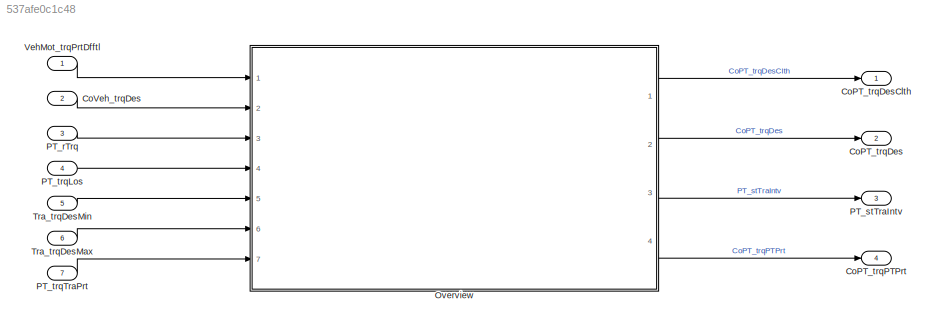
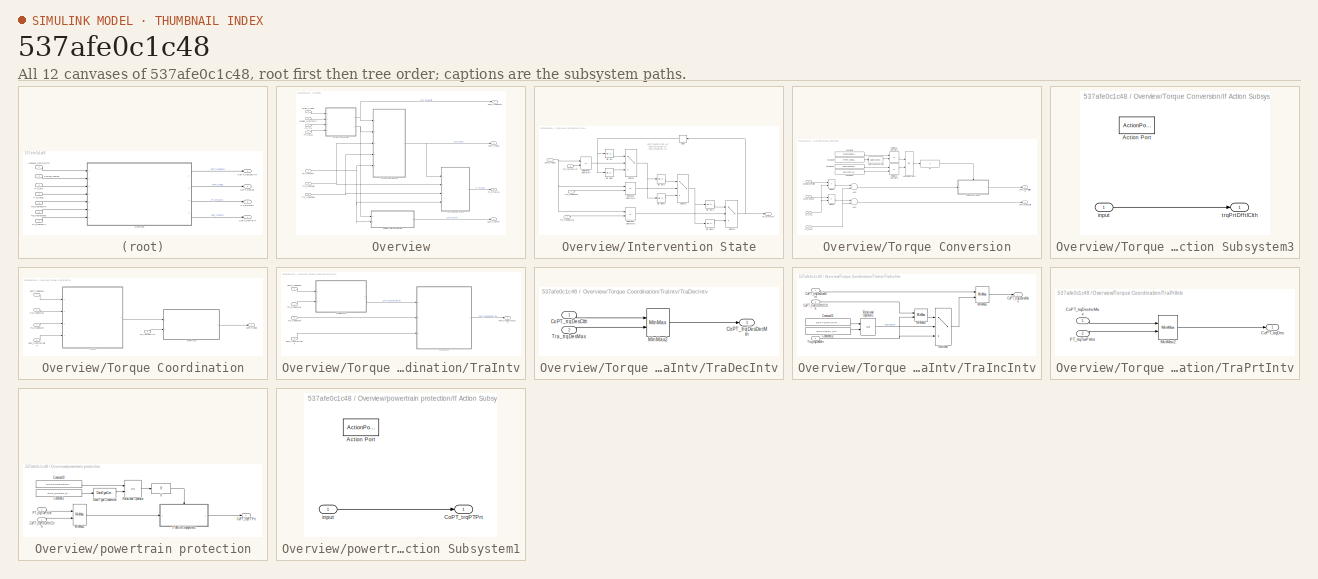
[diagram: thumbnail index - all 12 canvases of the model, root first then tree order]
MODEL slx_537afe0c1c48
KIND model
CONFIG AbsTol = auto
CONFIG EnableMultiTasking = off
CONFIG FixedStep = 0.001
CONFIG MaxStep = auto
CONFIG MinStep = auto
CONFIG RelTol = 1e-3
CONFIG SampleTimeConstraint = Unconstrained
CONFIG Solver = FixedStepDiscrete
CONFIG SolverName = FixedStepDiscrete
CONFIG StartTime = 0.0
CONFIG StopTime = Inf
BLOCK [Outport] CoPT_trqDes
  IconDisplay = Port number
  Port = 2
BLOCK [Outport] CoPT_trqDesClth
  IconDisplay = Port number
BLOCK [Outport] CoPT_trqPTPrt
  IconDisplay = Port number
  Port = 4
BLOCK [Inport] CoVeh_trqDes
  Description = Setpoint torque order to the drive train (gearbox output torque)
  IconDisplay = Port number
  OutDataTypeStr = Torq
  OutMax = 3000
  OutMin = -3000
  Port = 2
  PortDimensions = [1 1]
  Unit = Nm
BLOCK [SubSystem] Overview
  Ports = [7, 4]
  RequestExecContextInheritance = off
BLOCK [Outport] Overview/CoPT_trqDes
  IconDisplay = Port number
  Port = 2
  Tag = Nm
BLOCK [Outport] Overview/CoPT_trqDesClth
  IconDisplay = Port number
  Tag = Nm
BLOCK [Outport] Overview/CoPT_trqPTPrt
  IconDisplay = Port number
  Port = 4
  Tag = Nm
BLOCK [Inport] Overview/CoVeh_trqDes
  IconDisplay = Port number
  Port = 2
  Tag = Nm
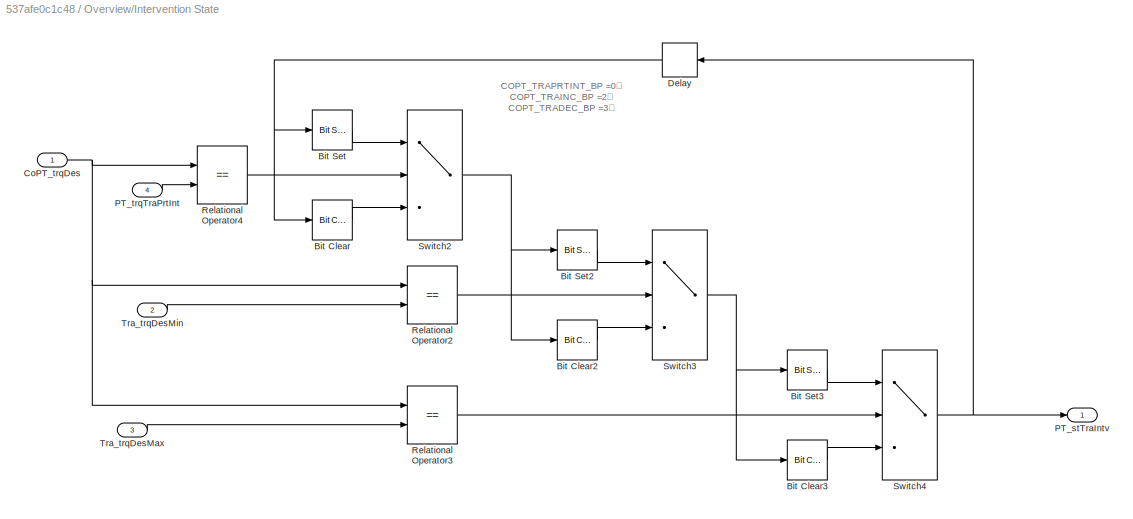
BLOCK [SubSystem] Overview/Intervention State
  Ports = [4, 1]
  RequestExecContextInheritance = off
BLOCK [Reference] Overview/Intervention State/Bit Clear  REF=simulink/Logic and Bit
Operations/Bit Clear
  Ports = [1, 1]
  SourceBlock = simulink/Logic and Bit\nOperations/Bit Clear
  SourceProductBaseCode = SL
  SourceProductName = Simulink
  SourceType = Bit Clear
BLOCK [Reference] Overview/Intervention State/Bit Clear2  REF=simulink/Logic and Bit
Operations/Bit Clear
  Ports = [1, 1]
  SourceBlock = simulink/Logic and Bit\nOperations/Bit Clear
  SourceProductBaseCode = SL
  SourceProductName = Simulink
  SourceType = Bit Clear
BLOCK [Reference] Overview/Intervention State/Bit Clear3  REF=simulink/Logic and Bit
Operations/Bit Clear
  Ports = [1, 1]
  SourceBlock = simulink/Logic and Bit\nOperations/Bit Clear
  SourceProductBaseCode = SL
  SourceProductName = Simulink
  SourceType = Bit Clear
BLOCK [Reference] Overview/Intervention State/Bit Set  REF=simulink/Logic and Bit
Operations/Bit Set
  Ports = [1, 1]
  SourceBlock = simulink/Logic and Bit\nOperations/Bit Set
  SourceProductBaseCode = SL
  SourceProductName = Simulink
  SourceType = Bit Set
BLOCK [Reference] Overview/Intervention State/Bit Set2  REF=simulink/Logic and Bit
Operations/Bit Set
  Ports = [1, 1]
  SourceBlock = simulink/Logic and Bit\nOperations/Bit Set
  SourceProductBaseCode = SL
  SourceProductName = Simulink
  SourceType = Bit Set
BLOCK [Reference] Overview/Intervention State/Bit Set3  REF=simulink/Logic and Bit
Operations/Bit Set
  Ports = [1, 1]
  SourceBlock = simulink/Logic and Bit\nOperations/Bit Set
  SourceProductBaseCode = SL
  SourceProductName = Simulink
  SourceType = Bit Set
BLOCK [Inport] Overview/Intervention State/CoPT_trqDes
  IconDisplay = Port number
BLOCK [Delay] Overview/Intervention State/Delay
  DelayLength = 1
  InitialCondition = 0
  InputPortMap = u0
  Ports = [1, 1]
BLOCK [Outport] Overview/Intervention State/PT_stTraIntv
  IconDisplay = Port number
BLOCK [Inport] Overview/Intervention State/PT_trqTraPrtInt
  IconDisplay = Port number
  Port = 4
BLOCK [RelationalOperator] Overview/Intervention State/Relational Operator2
  Operator = ==
  OutDataTypeStr = boolean
  Ports = [2, 1]
  RndMeth = Simplest
BLOCK [RelationalOperator] Overview/Intervention State/Relational Operator3
  Operator = ==
  OutDataTypeStr = boolean
  Ports = [2, 1]
  RndMeth = Simplest
BLOCK [RelationalOperator] Overview/Intervention State/Relational Operator4
  Operator = ==
  OutDataTypeStr = boolean
  Ports = [2, 1]
  RndMeth = Simplest
BLOCK [Switch] Overview/Intervention State/Switch2
  Criteria = u2 ~= 0
  SaturateOnIntegerOverflow = off
BLOCK [Switch] Overview/Intervention State/Switch3
  Criteria = u2 ~= 0
  SaturateOnIntegerOverflow = off
BLOCK [Switch] Overview/Intervention State/Switch4
  Criteria = u2 ~= 0
  SaturateOnIntegerOverflow = off
BLOCK [Inport] Overview/Intervention State/Tra_trqDesMax
  IconDisplay = Port number
  Port = 3
BLOCK [Inport] Overview/Intervention State/Tra_trqDesMin
  IconDisplay = Port number
  Port = 2
BLOCK [Inport] Overview/PT_rTrq
  IconDisplay = Port number
  Port = 3
BLOCK [Outport] Overview/PT_stTraIntv
  IconDisplay = Port number
  Port = 3
BLOCK [Inport] Overview/PT_trqLos
  IconDisplay = Port number
  Port = 4
  Tag = Nm
BLOCK [Inport] Overview/PT_trqTraPrt
  IconDisplay = Port number
  Port = 7
  Tag = Nm
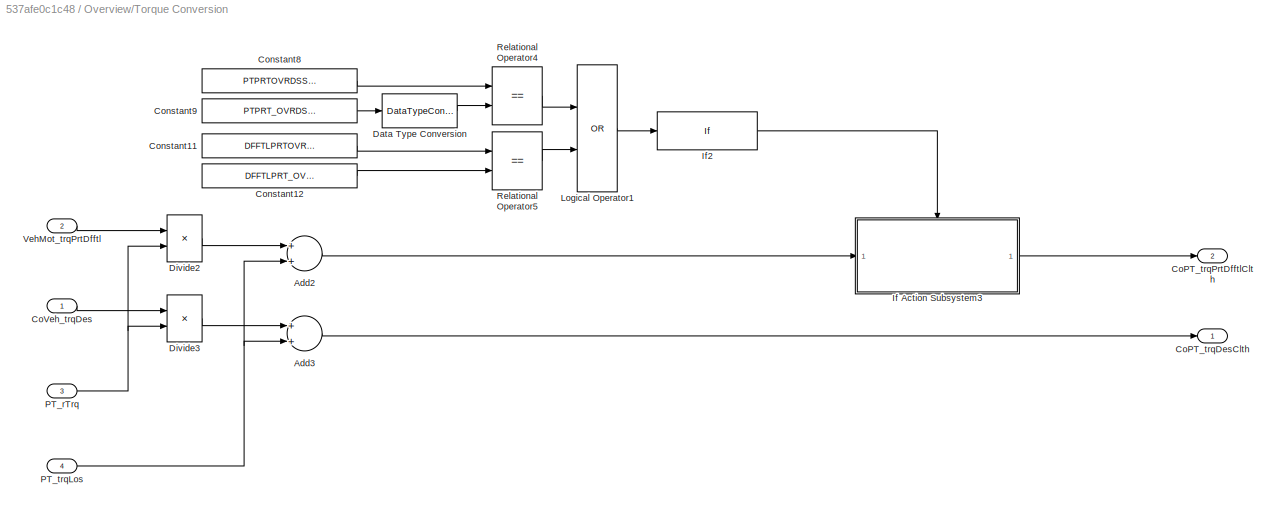
BLOCK [SubSystem] Overview/Torque Conversion
  Ports = [4, 2]
  RequestExecContextInheritance = off
BLOCK [Sum] Overview/Torque Conversion/Add2
  OutDataTypeStr = Inherit: Inherit via internal rule
  Ports = [2, 1]
  SaturateOnIntegerOverflow = off
BLOCK [Sum] Overview/Torque Conversion/Add3
  OutDataTypeStr = Inherit: Inherit via internal rule
  Ports = [2, 1]
  SaturateOnIntegerOverflow = off
BLOCK [Outport] Overview/Torque Conversion/CoPT_trqDesClth
  IconDisplay = Port number
BLOCK [Outport] Overview/Torque Conversion/CoPT_trqPrtDfftlClth
  IconDisplay = Port number
  Port = 2
BLOCK [Inport] Overview/Torque Conversion/CoVeh_trqDes
  IconDisplay = Port number
BLOCK [Constant] Overview/Torque Conversion/Constant11
  Value = DFFTLPRTOVRDSTSCINC_SY
BLOCK [Constant] Overview/Torque Conversion/Constant12
  Value = DFFTLPRT_OVRDS_TSCINC
BLOCK [Constant] Overview/Torque Conversion/Constant8
  Value = PTPRTOVRDSSPDGOV_SY
BLOCK [Constant] Overview/Torque Conversion/Constant9
  Value = PTPRT_OVRDS_SPDGOV
BLOCK [DataTypeConversion] Overview/Torque Conversion/Data Type Conversion
  RndMeth = Floor
  SaturateOnIntegerOverflow = off
BLOCK [Product] Overview/Torque Conversion/Divide2
  InputSameDT = off
  Inputs = */
  OutDataTypeStr = Inherit: Inherit via back propagation
  Ports = [2, 1]
  RndMeth = Floor
  SaturateOnIntegerOverflow = off
BLOCK [Product] Overview/Torque Conversion/Divide3
  InputSameDT = off
  Inputs = */
  OutDataTypeStr = Inherit: Inherit via back propagation
  Ports = [2, 1]
  RndMeth = Floor
  SaturateOnIntegerOverflow = off
BLOCK [SubSystem] Overview/Torque Conversion/If Action Subsystem3
  Ports = [1, 1, 0, 0, 0, 0, 0, 1]
  RequestExecContextInheritance = off
  TreatAsAtomicUnit = on
BLOCK [ActionPort] Overview/Torque Conversion/If Action Subsystem3/Action Port
  ActionType = then
BLOCK [Inport] Overview/Torque Conversion/If Action Subsystem3/input
  IconDisplay = Port number
BLOCK [Outport] Overview/Torque Conversion/If Action Subsystem3/trqPrtDfftlClth
  IconDisplay = Port number
BLOCK [If] Overview/Torque Conversion/If2
  IfExpression = u1 ~= 0
  Ports = [1, 1]
  ShowElse = off
BLOCK [Logic] Overview/Torque Conversion/Logical Operator1
  Operator = OR
  OutDataTypeStr = boolean
  Ports = [2, 1]
BLOCK [Inport] Overview/Torque Conversion/PT_rTrq
  IconDisplay = Port number
  Port = 3
BLOCK [Inport] Overview/Torque Conversion/PT_trqLos
  IconDisplay = Port number
  Port = 4
BLOCK [RelationalOperator] Overview/Torque Conversion/Relational Operator4
  Operator = ==
  OutDataTypeStr = boolean
  Ports = [2, 1]
  RndMeth = Simplest
BLOCK [RelationalOperator] Overview/Torque Conversion/Relational Operator5
  Operator = ==
  OutDataTypeStr = boolean
  Ports = [2, 1]
  RndMeth = Simplest
BLOCK [Inport] Overview/Torque Conversion/VehMot_trqPrtDfftl
  IconDisplay = Port number
  Port = 2
BLOCK [SubSystem] Overview/Torque Coordination
  Ports = [5, 1]
  RequestExecContextInheritance = off
BLOCK [Outport] Overview/Torque Coordination/CoPT_trqDes
  IconDisplay = Port number
BLOCK [Inport] Overview/Torque Coordination/CoPT_trqDesClth
  IconDisplay = Port number
BLOCK [Inport] Overview/Torque Coordination/CoPT_trqPrtDfftlClth
  IconDisplay = Port number
  Port = 2
BLOCK [Inport] Overview/Torque Coordination/PT_trqTraPrtInt
  IconDisplay = Port number
  Port = 5
BLOCK [SubSystem] Overview/Torque Coordination/TraIntv
  Ports = [4, 1]
  RequestExecContextInheritance = off
BLOCK [Inport] Overview/Torque Coordination/TraIntv/CoPT_trqDesClth
  IconDisplay = Port number
BLOCK [Outport] Overview/Torque Coordination/TraIntv/CoPT_trqDesIncMax
  IconDisplay = Port number
BLOCK [Inport] Overview/Torque Coordination/TraIntv/CoPT_trqPrtDfftlClth
  IconDisplay = Port number
  Port = 4
BLOCK [SubSystem] Overview/Torque Coordination/TraIntv/TraDecIntv
  Ports = [2, 1]
  RequestExecContextInheritance = off
BLOCK [Inport] Overview/Torque Coordination/TraIntv/TraDecIntv/CoPT_trqDesClth
  IconDisplay = Port number
BLOCK [Outport] Overview/Torque Coordination/TraIntv/TraDecIntv/CoPT_trqDesDecMin
  IconDisplay = Port number
BLOCK [MinMax] Overview/Torque Coordination/TraIntv/TraDecIntv/MinMax2
  Inputs = 2
  Ports = [2, 1]
  SaturateOnIntegerOverflow = off
BLOCK [Inport] Overview/Torque Coordination/TraIntv/TraDecIntv/Tra_trqDesMax
  IconDisplay = Port number
  Port = 2
BLOCK [SubSystem] Overview/Torque Coordination/TraIntv/TraIncIntv
  Ports = [3, 1]
  RequestExecContextInheritance = off
BLOCK [Inport] Overview/Torque Coordination/TraIntv/TraIncIntv/CoPT_trqDesDecMin
  IconDisplay = Port number
BLOCK [Outport] Overview/Torque Coordination/TraIntv/TraIncIntv/CoPT_trqDesIncMax
  IconDisplay = Port number
BLOCK [Inport] Overview/Torque Coordination/TraIntv/TraIncIntv/CoPT_trqPrtDfftlClth
  IconDisplay = Port number
  Port = 3
BLOCK [Constant] Overview/Torque Coordination/TraIntv/TraIncIntv/Constant11
  Value = DFFTLPRTOVRDSTSCINC_SY
BLOCK [Constant] Overview/Torque Coordination/TraIntv/TraIncIntv/Constant12
  Value = DFFTLPRT_OVRDS_TSCINC
BLOCK [MinMax] Overview/Torque Coordination/TraIntv/TraIncIntv/MinMax1
  Function = max
  Inputs = 2
  Ports = [2, 1]
  SaturateOnIntegerOverflow = off
BLOCK [MinMax] Overview/Torque Coordination/TraIntv/TraIncIntv/MinMax2
  Inputs = 2
  Ports = [2, 1]
  SaturateOnIntegerOverflow = off
BLOCK [RelationalOperator] Overview/Torque Coordination/TraIntv/TraIncIntv/Relational Operator5
  Operator = ==
  OutDataTypeStr = boolean
  Ports = [2, 1]
  RndMeth = Simplest
BLOCK [Switch] Overview/Torque Coordination/TraIntv/TraIncIntv/Switch6
  Criteria = u2 ~= 0
  SaturateOnIntegerOverflow = off
BLOCK [Inport] Overview/Torque Coordination/TraIntv/TraIncIntv/Tra_trqDesMin
  IconDisplay = Port number
  Port = 2
BLOCK [Inport] Overview/Torque Coordination/TraIntv/Tra_trqDesMax
  IconDisplay = Port number
  Port = 2
BLOCK [Inport] Overview/Torque Coordination/TraIntv/Tra_trqDesMin
  IconDisplay = Port number
  Port = 3
BLOCK [SubSystem] Overview/Torque Coordination/TraPrtIntv
  Ports = [2, 1]
  RequestExecContextInheritance = off
BLOCK [Outport] Overview/Torque Coordination/TraPrtIntv/CoPT_trqDes
  IconDisplay = Port number
BLOCK [Inport] Overview/Torque Coordination/TraPrtIntv/CoPT_trqDesIncMax
  IconDisplay = Port number
BLOCK [MinMax] Overview/Torque Coordination/TraPrtIntv/MinMax2
  Inputs = 2
  Ports = [2, 1]
  SaturateOnIntegerOverflow = off
BLOCK [Inport] Overview/Torque Coordination/TraPrtIntv/PT_trqTraPrtInt
  IconDisplay = Port number
  Port = 2
BLOCK [Inport] Overview/Torque Coordination/Tra_trqDesMax
  IconDisplay = Port number
  Port = 4
BLOCK [Inport] Overview/Torque Coordination/Tra_trqDesMin
  IconDisplay = Port number
  Port = 3
BLOCK [Inport] Overview/Tra_trqDesMax
  IconDisplay = Port number
  Port = 6
  Tag = Nm
BLOCK [Inport] Overview/Tra_trqDesMin
  IconDisplay = Port number
  Port = 5
  Tag = Nm
BLOCK [Inport] Overview/VehMot_trqPrtDfftl
  IconDisplay = Port number
  Tag = Nm
BLOCK [SubSystem] Overview/powertrain protection
  Ports = [2, 1]
  RequestExecContextInheritance = off
BLOCK [Outport] Overview/powertrain protection/CoPT_trqPTPrt
  IconDisplay = Port number
BLOCK [Inport] Overview/powertrain protection/CoPT_trqPrtDfftlClth
  IconDisplay = Port number
BLOCK [Constant] Overview/powertrain protection/Constant10
  Value = DCSOVRDSENGPRT_SY
BLOCK [Constant] Overview/powertrain protection/Constant2
  Value = DCS_OVRDS_ENGPRT
BLOCK [DataTypeConversion] Overview/powertrain protection/Data Type Conversion
  RndMeth = Floor
  SaturateOnIntegerOverflow = off
BLOCK [If] Overview/powertrain protection/If
  IfExpression = u1 ~= 0
  Ports = [1, 1]
  ShowElse = off
BLOCK [SubSystem] Overview/powertrain protection/If Action Subsystem1
  Ports = [1, 1, 0, 0, 0, 0, 0, 1]
  RequestExecContextInheritance = off
  TreatAsAtomicUnit = on
BLOCK [ActionPort] Overview/powertrain protection/If Action Subsystem1/Action Port
  ActionType = then
BLOCK [Outport] Overview/powertrain protection/If Action Subsystem1/CoPT_trqPTPrt
  IconDisplay = Port number
BLOCK [Inport] Overview/powertrain protection/If Action Subsystem1/input
  IconDisplay = Port number
BLOCK [MinMax] Overview/powertrain protection/MinMax1
  Inputs = 2
  Ports = [2, 1]
  SaturateOnIntegerOverflow = off
BLOCK [Inport] Overview/powertrain protection/PT_trqTraPrtInt
  IconDisplay = Port number
  Port = 2
BLOCK [RelationalOperator] Overview/powertrain protection/Relational Operator
  Operator = ==
  OutDataTypeStr = boolean
  Ports = [2, 1]
  RndMeth = Simplest
BLOCK [Inport] PT_rTrq
  Description = Powertrain torque ratio
  IconDisplay = Port number
  OutDataTypeStr = Ratio_100
  OutMax = 100
  OutMin = -100
  Port = 3
  PortDimensions = [1 1]
BLOCK [Outport] PT_stTraIntv
  IconDisplay = Port number
  Port = 3
BLOCK [Inport] PT_trqLos
  Description = Parameter for loss torque of the drive train
  IconDisplay = Port number
  OutDataTypeStr = Torq
  OutMax = 3000
  OutMin = -3000
  Port = 4
  PortDimensions = [1 1]
  Unit = Nm
BLOCK [Inport] PT_trqTraPrt
  Description = Maximum allowed inner torque
  IconDisplay = Port number
  OutDataTypeStr = Torq
  OutMax = 3000
  OutMin = -3000
  Port = 7
  PortDimensions = [1 1]
  Unit = Nm
BLOCK [Inport] Tra_trqDesMax
  Description = Decrement torque demand from gearbox
  IconDisplay = Port number
  OutDataTypeStr = Torq
  OutMax = 3000
  OutMin = -3000
  Port = 6
  PortDimensions = [1 1]
  Unit = Nm
BLOCK [Inport] Tra_trqDesMin
  Description = Increment torque demand from gearbox
  IconDisplay = Port number
  OutDataTypeStr = Torq
  OutMax = 3000
  OutMin = -3000
  Port = 5
  PortDimensions = [1 1]
  Unit = Nm
BLOCK [Inport] VehMot_trqPrtDfftl
  Description = Differential protection torque
  IconDisplay = Port number
  OutDataTypeStr = Torq
  OutMax = 3000
  OutMin = -3000
  PortDimensions = [1 1]
  Unit = Nm
ANNOTATION Overview/Intervention State: COPT_TRAPRTINT_BP =0； COPT_TRAINC_BP =2； COPT_TRADEC_BP =3；
LINE CoVeh_trqDes:1 -> Overview:2
LINE Overview/CoVeh_trqDes:1 -> Overview/Torque Conversion:1
LINE Overview/Intervention State/Bit Clear2:1 -> Overview/Intervention State/Switch3:3
LINE Overview/Intervention State/Bit Clear3:1 -> Overview/Intervention State/Switch4:3
LINE Overview/Intervention State/Bit Clear:1 -> Overview/Intervention State/Switch2:3
LINE Overview/Intervention State/Bit Set2:1 -> Overview/Intervention State/Switch3:1
LINE Overview/Intervention State/Bit Set3:1 -> Overview/Intervention State/Switch4:1
LINE Overview/Intervention State/Bit Set:1 -> Overview/Intervention State/Switch2:1
NET Overview/Intervention State/CoPT_trqDes:1 -> Overview/Intervention State/Relational Operator2:1, Overview/Intervention State/Relational Operator3:1, Overview/Intervention State/Relational Operator4:1
NET Overview/Intervention State/Delay:1 -> Overview/Intervention State/Bit Clear:1, Overview/Intervention State/Bit Set:1
LINE Overview/Intervention State/PT_trqTraPrtInt:1 -> Overview/Intervention State/Relational Operator4:2
LINE Overview/Intervention State/Relational Operator2:1 -> Overview/Intervention State/Switch3:2
LINE Overview/Intervention State/Relational Operator3:1 -> Overview/Intervention State/Switch4:2
LINE Overview/Intervention State/Relational Operator4:1 -> Overview/Intervention State/Switch2:2
NET Overview/Intervention State/Switch2:1 -> Overview/Intervention State/Bit Clear2:1, Overview/Intervention State/Bit Set2:1
NET Overview/Intervention State/Switch3:1 -> Overview/Intervention State/Bit Clear3:1, Overview/Intervention State/Bit Set3:1
NET Overview/Intervention State/Switch4:1 -> Overview/Intervention State/Delay:1, Overview/Intervention State/PT_stTraIntv:1
LINE Overview/Intervention State/Tra_trqDesMax:1 -> Overview/Intervention State/Relational Operator3:2
LINE Overview/Intervention State/Tra_trqDesMin:1 -> Overview/Intervention State/Relational Operator2:2
LINE Overview/Intervention State:1 -> Overview/PT_stTraIntv:1
LINE Overview/PT_rTrq:1 -> Overview/Torque Conversion:3
LINE Overview/PT_trqLos:1 -> Overview/Torque Conversion:4
NET Overview/PT_trqTraPrt:1 -> Overview/Intervention State:4, Overview/Torque Coordination:5, Overview/powertrain protection:2
LINE Overview/Torque Conversion/Add2:1 -> Overview/Torque Conversion/If Action Subsystem3:1
LINE Overview/Torque Conversion/Add3:1 -> Overview/Torque Conversion/CoPT_trqDesClth:1
LINE Overview/Torque Conversion/CoVeh_trqDes:1 -> Overview/Torque Conversion/Divide3:1
LINE Overview/Torque Conversion/Constant11:1 -> Overview/Torque Conversion/Relational Operator5:1
LINE Overview/Torque Conversion/Constant12:1 -> Overview/Torque Conversion/Relational Operator5:2
LINE Overview/Torque Conversion/Constant8:1 -> Overview/Torque Conversion/Relational Operator4:1
LINE Overview/Torque Conversion/Constant9:1 -> Overview/Torque Conversion/Data Type Conversion:1
LINE Overview/Torque Conversion/Data Type Conversion:1 -> Overview/Torque Conversion/Relational Operator4:2
LINE Overview/Torque Conversion/Divide2:1 -> Overview/Torque Conversion/Add2:1
LINE Overview/Torque Conversion/Divide3:1 -> Overview/Torque Conversion/Add3:1
LINE Overview/Torque Conversion/If Action Subsystem3/input:1 -> Overview/Torque Conversion/If Action Subsystem3/trqPrtDfftlClth:1
LINE Overview/Torque Conversion/If Action Subsystem3:1 -> Overview/Torque Conversion/CoPT_trqPrtDfftlClth:1
LINE Overview/Torque Conversion/If2:1 -> Overview/Torque Conversion/If Action Subsystem3:ifaction
LINE Overview/Torque Conversion/Logical Operator1:1 -> Overview/Torque Conversion/If2:1
NET Overview/Torque Conversion/PT_rTrq:1 -> Overview/Torque Conversion/Divide2:2, Overview/Torque Conversion/Divide3:2
NET Overview/Torque Conversion/PT_trqLos:1 -> Overview/Torque Conversion/Add2:2, Overview/Torque Conversion/Add3:2
LINE Overview/Torque Conversion/Relational Operator4:1 -> Overview/Torque Conversion/Logical Operator1:1
LINE Overview/Torque Conversion/Relational Operator5:1 -> Overview/Torque Conversion/Logical Operator1:2
LINE Overview/Torque Conversion/VehMot_trqPrtDfftl:1 -> Overview/Torque Conversion/Divide2:1
NET Overview/Torque Conversion:1 -> Overview/CoPT_trqDesClth:1, Overview/Torque Coordination:1
NET Overview/Torque Conversion:2 -> Overview/Torque Coordination:2, Overview/powertrain protection:1
LINE Overview/Torque Coordination/CoPT_trqDesClth:1 -> Overview/Torque Coordination/TraIntv:1
LINE Overview/Torque Coordination/CoPT_trqPrtDfftlClth:1 -> Overview/Torque Coordination/TraIntv:4
LINE Overview/Torque Coordination/PT_trqTraPrtInt:1 -> Overview/Torque Coordination/TraPrtIntv:2
LINE Overview/Torque Coordination/TraIntv/CoPT_trqDesClth:1 -> Overview/Torque Coordination/TraIntv/TraDecIntv:1
LINE Overview/Torque Coordination/TraIntv/CoPT_trqPrtDfftlClth:1 -> Overview/Torque Coordination/TraIntv/TraIncIntv:3
LINE Overview/Torque Coordination/TraIntv/TraDecIntv/CoPT_trqDesClth:1 -> Overview/Torque Coordination/TraIntv/TraDecIntv/MinMax2:1
LINE Overview/Torque Coordination/TraIntv/TraDecIntv/MinMax2:1 -> Overview/Torque Coordination/TraIntv/TraDecIntv/CoPT_trqDesDecMin:1
LINE Overview/Torque Coordination/TraIntv/TraDecIntv/Tra_trqDesMax:1 -> Overview/Torque Coordination/TraIntv/TraDecIntv/MinMax2:2
LINE Overview/Torque Coordination/TraIntv/TraDecIntv:1 -> Overview/Torque Coordination/TraIntv/TraIncIntv:1
LINE Overview/Torque Coordination/TraIntv/TraIncIntv/CoPT_trqDesDecMin:1 -> Overview/Torque Coordination/TraIntv/TraIncIntv/MinMax1:1
LINE Overview/Torque Coordination/TraIntv/TraIncIntv/CoPT_trqPrtDfftlClth:1 -> Overview/Torque Coordination/TraIntv/TraIncIntv/MinMax2:1
LINE Overview/Torque Coordination/TraIntv/TraIncIntv/Constant11:1 -> Overview/Torque Coordination/TraIntv/TraIncIntv/Relational Operator5:1
LINE Overview/Torque Coordination/TraIntv/TraIncIntv/Constant12:1 -> Overview/Torque Coordination/TraIntv/TraIncIntv/Relational Operator5:2
LINE Overview/Torque Coordination/TraIntv/TraIncIntv/MinMax1:1 -> Overview/Torque Coordination/TraIntv/TraIncIntv/CoPT_trqDesIncMax:1
LINE Overview/Torque Coordination/TraIntv/TraIncIntv/MinMax2:1 -> Overview/Torque Coordination/TraIntv/TraIncIntv/Switch6:1
LINE Overview/Torque Coordination/TraIntv/TraIncIntv/Relational Operator5:1 -> Overview/Torque Coordination/TraIntv/TraIncIntv/Switch6:2
LINE Overview/Torque Coordination/TraIntv/TraIncIntv/Switch6:1 -> Overview/Torque Coordination/TraIntv/TraIncIntv/MinMax1:2
NET Overview/Torque Coordination/TraIntv/TraIncIntv/Tra_trqDesMin:1 -> Overview/Torque Coordination/TraIntv/TraIncIntv/MinMax2:2, Overview/Torque Coordination/TraIntv/TraIncIntv/Switch6:3
LINE Overview/Torque Coordination/TraIntv/TraIncIntv:1 -> Overview/Torque Coordination/TraIntv/CoPT_trqDesIncMax:1
LINE Overview/Torque Coordination/TraIntv/Tra_trqDesMax:1 -> Overview/Torque Coordination/TraIntv/TraDecIntv:2
LINE Overview/Torque Coordination/TraIntv/Tra_trqDesMin:1 -> Overview/Torque Coordination/TraIntv/TraIncIntv:2
LINE Overview/Torque Coordination/TraIntv:1 -> Overview/Torque Coordination/TraPrtIntv:1
LINE Overview/Torque Coordination/TraPrtIntv/CoPT_trqDesIncMax:1 -> Overview/Torque Coordination/TraPrtIntv/MinMax2:1
LINE Overview/Torque Coordination/TraPrtIntv/MinMax2:1 -> Overview/Torque Coordination/TraPrtIntv/CoPT_trqDes:1
LINE Overview/Torque Coordination/TraPrtIntv/PT_trqTraPrtInt:1 -> Overview/Torque Coordination/TraPrtIntv/MinMax2:2
LINE Overview/Torque Coordination/TraPrtIntv:1 -> Overview/Torque Coordination/CoPT_trqDes:1
LINE Overview/Torque Coordination/Tra_trqDesMax:1 -> Overview/Torque Coordination/TraIntv:2
LINE Overview/Torque Coordination/Tra_trqDesMin:1 -> Overview/Torque Coordination/TraIntv:3
NET Overview/Torque Coordination:1 -> Overview/CoPT_trqDes:1, Overview/Intervention State:1
NET Overview/Tra_trqDesMax:1 -> Overview/Intervention State:3, Overview/Torque Coordination:4
NET Overview/Tra_trqDesMin:1 -> Overview/Intervention State:2, Overview/Torque Coordination:3
LINE Overview/VehMot_trqPrtDfftl:1 -> Overview/Torque Conversion:2
LINE Overview/powertrain protection/CoPT_trqPrtDfftlClth:1 -> Overview/powertrain protection/MinMax1:2
LINE Overview/powertrain protection/Constant10:1 -> Overview/powertrain protection/Relational Operator:1
LINE Overview/powertrain protection/Constant2:1 -> Overview/powertrain protection/Data Type Conversion:1
LINE Overview/powertrain protection/Data Type Conversion:1 -> Overview/powertrain protection/Relational Operator:2
LINE Overview/powertrain protection/If Action Subsystem1/input:1 -> Overview/powertrain protection/If Action Subsystem1/CoPT_trqPTPrt:1
LINE Overview/powertrain protection/If Action Subsystem1:1 -> Overview/powertrain protection/CoPT_trqPTPrt:1
LINE Overview/powertrain protection/If:1 -> Overview/powertrain protection/If Action Subsystem1:ifaction
LINE Overview/powertrain protection/MinMax1:1 -> Overview/powertrain protection/If Action Subsystem1:1
LINE Overview/powertrain protection/PT_trqTraPrtInt:1 -> Overview/powertrain protection/MinMax1:1
LINE Overview/powertrain protection/Relational Operator:1 -> Overview/powertrain protection/If:1
LINE Overview/powertrain protection:1 -> Overview/CoPT_trqPTPrt:1
LINE Overview:1 -> CoPT_trqDesClth:1
LINE Overview:2 -> CoPT_trqDes:1
LINE Overview:3 -> PT_stTraIntv:1
LINE Overview:4 -> CoPT_trqPTPrt:1
LINE PT_rTrq:1 -> Overview:3
LINE PT_trqLos:1 -> Overview:4
LINE PT_trqTraPrt:1 -> Overview:7
LINE Tra_trqDesMax:1 -> Overview:6
LINE Tra_trqDesMin:1 -> Overview:5
LINE VehMot_trqPrtDfftl:1 -> Overview:1
note: NET lines group one-source signal fan-out (src -> all destinations, sorted); 1:1 wires keep LINE
